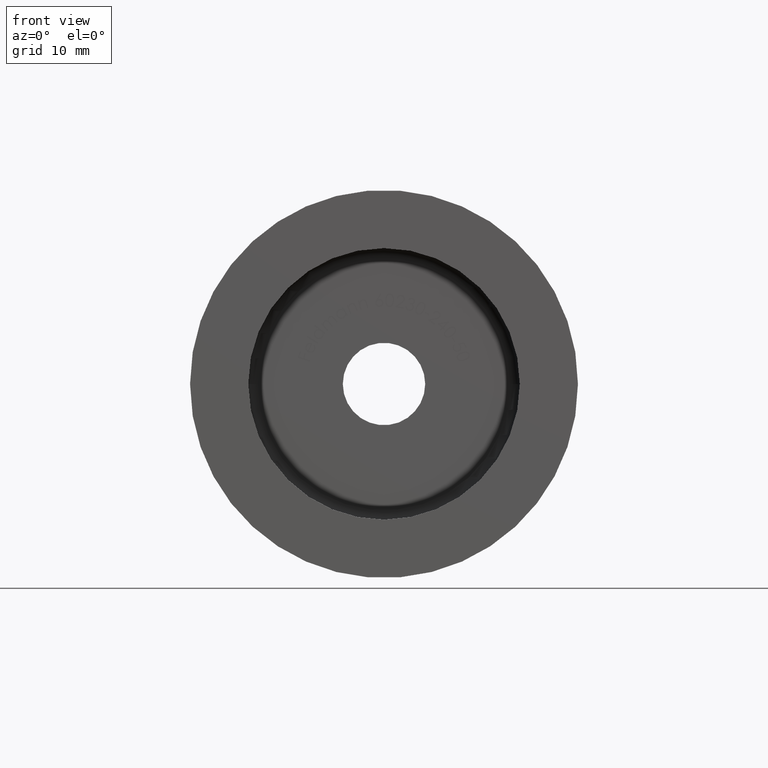
[diagram: clean part render]
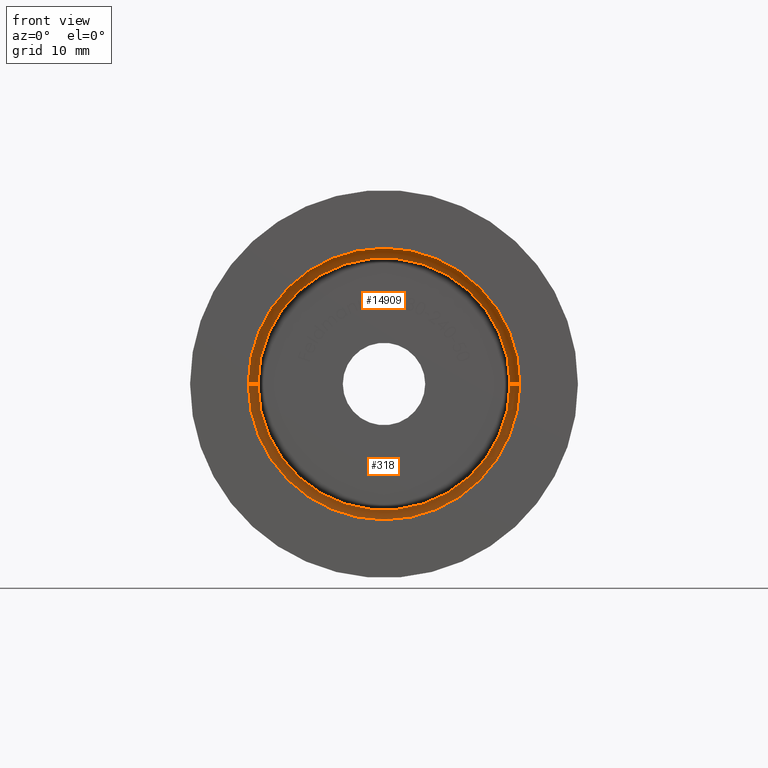
[diagram: same view with one multi-face feature highlighted, each face labeled with its STEP entity id]
A machine part, front view. The highlighted faces form ONE feature: a constant-radius fillet chain: 2 tangent blend faces with common blend radius 1 mm. The faces share edges in the B-rep.
Their STEP definitions:
[1] entity #14909 (Torus):
#130 = DIRECTION ( 'NONE',  ( -1.224646799147353207E-16, -8.497694209043069439E-33, 1.000000000000000000 ) ) ;
#227 = CARTESIAN_POINT ( 'NONE',  ( 13.00000000000000178, 44.00000000000000711, 1.592040838891559293E-15 ) ) ;
#495 = DIRECTION ( 'NONE',  ( -6.938893903907228378E-17, 1.000000000000000000, -0.000000000000000000 ) ) ;
#1329 = CARTESIAN_POINT ( 'NONE',  ( 14.00000000000000178, 44.00000000000000711, 1.714505518806294638E-15 ) ) ;
#1524 = CIRCLE ( 'NONE', #13861, 13.00000000000000178 ) ;
#1796 = CIRCLE ( 'NONE', #10970, 1.000000000000000888 ) ;
#1859 = CARTESIAN_POINT ( 'NONE',  ( -14.00000000000000178, 44.00000000000000711, 0.000000000000000000 ) ) ;
#2018 = DIRECTION ( 'NONE',  ( -1.000000000000000000, -6.938893903907228378E-17, 0.000000000000000000 ) ) ;
#2139 = VERTEX_POINT ( 'NONE', #11878 ) ;
#2423 = FACE_OUTER_BOUND ( 'NONE', #15037, .T. ) ;
#2976 = CARTESIAN_POINT ( 'NONE',  ( 0.000000000000000000, 44.00000000000000711, 0.000000000000000000 ) ) ;
#3293 = DIRECTION ( 'NONE',  ( -6.938893903907228378E-17, 1.000000000000000000, -0.000000000000000000 ) ) ;
#4107 = VERTEX_POINT ( 'NONE', #9089 ) ;
#4769 = CARTESIAN_POINT ( 'NONE',  ( 0.000000000000000000, 44.00000000000000711, 0.000000000000000000 ) ) ;
#5057 = TOROIDAL_SURFACE ( 'NONE', #11424, 13.00000000000000178, 1.000000000000000000 ) ;
#5368 = ORIENTED_EDGE ( 'NONE', *, *, #13559, .F. ) ;
#5591 = CARTESIAN_POINT ( 'NONE',  ( -13.00000000000000178, 44.00000000000000711, 0.000000000000000000 ) ) ;
#5629 = CARTESIAN_POINT ( 'NONE',  ( 0.000000000000000000, 44.00000000000000711, 0.000000000000000000 ) ) ;
#5700 = AXIS2_PLACEMENT_3D ( 'NONE', #2976, #495, #15283 ) ;
#5711 = VERTEX_POINT ( 'NONE', #9683 ) ;
#6003 = CARTESIAN_POINT ( 'NONE',  ( -6.938893903907244401E-17, 45.00000000000000711, 0.000000000000000000 ) ) ;
#6058 = ORIENTED_EDGE ( 'NONE', *, *, #12772, .F. ) ;
#7043 = AXIS2_PLACEMENT_3D ( 'NONE', #4769, #13370, #13419 ) ;
#7247 = ORIENTED_EDGE ( 'NONE', *, *, #15884, .F. ) ;
#7282 = ORIENTED_EDGE ( 'NONE', *, *, #15491, .F. ) ;
#7961 = DIRECTION ( 'NONE',  ( -1.000000000000000000, 0.000000000000000000, 0.000000000000000000 ) ) ;
#8099 = AXIS2_PLACEMENT_3D ( 'NONE', #227, #130, #11141 ) ;
#8586 = DIRECTION ( 'NONE',  ( -1.000000000000000000, 0.000000000000000000, 0.000000000000000000 ) ) ;
#9089 = CARTESIAN_POINT ( 'NONE',  ( 13.00000000000000178, 45.00000000000000711, 1.653273178848927064E-15 ) ) ;
#9112 = VERTEX_POINT ( 'NONE', #1859 ) ;
#9683 = CARTESIAN_POINT ( 'NONE',  ( -13.00000000000000178, 45.00000000000000711, 0.000000000000000000 ) ) ;
#10166 = EDGE_CURVE ( 'NONE', #9112, #5711, #1796, .T. ) ;
#10970 = AXIS2_PLACEMENT_3D ( 'NONE', #5591, #11689, #7961 ) ;
#11002 = CIRCLE ( 'NONE', #5700, 14.00000000000000000 ) ;
#11075 = DIRECTION ( 'NONE',  ( 6.938893903907228378E-17, -1.000000000000000000, 0.000000000000000000 ) ) ;
#11141 = DIRECTION ( 'NONE',  ( 1.000000000000000000, 0.000000000000000000, 1.224646799147351482E-16 ) ) ;
#11424 = AXIS2_PLACEMENT_3D ( 'NONE', #5629, #3293, #2018 ) ;
#11484 = ORIENTED_EDGE ( 'NONE', *, *, #10166, .T. ) ;
#11563 = CIRCLE ( 'NONE', #7043, 14.00000000000000000 ) ;
#11689 = DIRECTION ( 'NONE',  ( 0.000000000000000000, -0.000000000000000000, -1.000000000000000000 ) ) ;
#11878 = CARTESIAN_POINT ( 'NONE',  ( 1.714505518806294638E-15, 44.00000000000000711, 14.00000000000000000 ) ) ;
#11979 = VERTEX_POINT ( 'NONE', #1329 ) ;
#12772 = EDGE_CURVE ( 'NONE', #2139, #11979, #11563, .T. ) ;
#13370 = DIRECTION ( 'NONE',  ( -6.938893903907228378E-17, 1.000000000000000000, -0.000000000000000000 ) ) ;
#13419 = DIRECTION ( 'NONE',  ( -1.000000000000000000, 0.000000000000000000, 0.000000000000000000 ) ) ;
#13559 = EDGE_CURVE ( 'NONE', #9112, #2139, #11002, .T. ) ;
#13861 = AXIS2_PLACEMENT_3D ( 'NONE', #6003, #11075, #8586 ) ;
#14363 = CIRCLE ( 'NONE', #8099, 1.000000000000000888 ) ;
#14909 = ADVANCED_FACE ( 'NONE', ( #2423 ), #5057, .F. ) ;
#15037 = EDGE_LOOP ( 'NONE', ( #7282, #6058, #5368, #11484, #7247 ) ) ;
#15283 = DIRECTION ( 'NONE',  ( -1.000000000000000000, 0.000000000000000000, 0.000000000000000000 ) ) ;
#15491 = EDGE_CURVE ( 'NONE', #11979, #4107, #14363, .T. ) ;
#15884 = EDGE_CURVE ( 'NONE', #4107, #5711, #1524, .T. ) ;
[2] entity #318 (Torus):
#130 = DIRECTION ( 'NONE',  ( -1.224646799147353207E-16, -8.497694209043069439E-33, 1.000000000000000000 ) ) ;
#227 = CARTESIAN_POINT ( 'NONE',  ( 13.00000000000000178, 44.00000000000000711, 1.592040838891559293E-15 ) ) ;
#318 = ADVANCED_FACE ( 'NONE', ( #12040 ), #5459, .F. ) ;
#899 = DIRECTION ( 'NONE',  ( -6.938893903907228378E-17, 1.000000000000000000, -0.000000000000000000 ) ) ;
#1305 = DIRECTION ( 'NONE',  ( -6.938893903907228378E-17, 1.000000000000000000, -0.000000000000000000 ) ) ;
#1329 = CARTESIAN_POINT ( 'NONE',  ( 14.00000000000000178, 44.00000000000000711, 1.714505518806294638E-15 ) ) ;
#1796 = CIRCLE ( 'NONE', #10970, 1.000000000000000888 ) ;
#1859 = CARTESIAN_POINT ( 'NONE',  ( -14.00000000000000178, 44.00000000000000711, 0.000000000000000000 ) ) ;
#2330 = DIRECTION ( 'NONE',  ( -1.000000000000000000, 0.000000000000000000, 0.000000000000000000 ) ) ;
#2706 = CARTESIAN_POINT ( 'NONE',  ( 0.000000000000000000, 44.00000000000000711, 0.000000000000000000 ) ) ;
#2950 = ORIENTED_EDGE ( 'NONE', *, *, #10166, .F. ) ;
#3258 = AXIS2_PLACEMENT_3D ( 'NONE', #6995, #899, #12973 ) ;
#4107 = VERTEX_POINT ( 'NONE', #9089 ) ;
#4202 = AXIS2_PLACEMENT_3D ( 'NONE', #2706, #1305, #12421 ) ;
#5097 = EDGE_LOOP ( 'NONE', ( #12400, #11494, #11874, #2950, #13227 ) ) ;
#5177 = AXIS2_PLACEMENT_3D ( 'NONE', #15483, #15651, #8306 ) ;
#5459 = TOROIDAL_SURFACE ( 'NONE', #4202, 13.00000000000000178, 1.000000000000000000 ) ;
#5591 = CARTESIAN_POINT ( 'NONE',  ( -13.00000000000000178, 44.00000000000000711, 0.000000000000000000 ) ) ;
#5711 = VERTEX_POINT ( 'NONE', #9683 ) ;
#5719 = CIRCLE ( 'NONE', #12543, 14.00000000000000000 ) ;
#6995 = CARTESIAN_POINT ( 'NONE',  ( 0.000000000000000000, 44.00000000000000711, 0.000000000000000000 ) ) ;
#7574 = CARTESIAN_POINT ( 'NONE',  ( 0.000000000000000000, 44.00000000000000711, -14.00000000000000000 ) ) ;
#7961 = DIRECTION ( 'NONE',  ( -1.000000000000000000, 0.000000000000000000, 0.000000000000000000 ) ) ;
#8099 = AXIS2_PLACEMENT_3D ( 'NONE', #227, #130, #11141 ) ;
#8306 = DIRECTION ( 'NONE',  ( -1.000000000000000000, 0.000000000000000000, 0.000000000000000000 ) ) ;
#8314 = CIRCLE ( 'NONE', #5177, 13.00000000000000178 ) ;
#8434 = DIRECTION ( 'NONE',  ( -6.938893903907228378E-17, 1.000000000000000000, -0.000000000000000000 ) ) ;
#9089 = CARTESIAN_POINT ( 'NONE',  ( 13.00000000000000178, 45.00000000000000711, 1.653273178848927064E-15 ) ) ;
#9112 = VERTEX_POINT ( 'NONE', #1859 ) ;
#9644 = CIRCLE ( 'NONE', #3258, 14.00000000000000000 ) ;
#9683 = CARTESIAN_POINT ( 'NONE',  ( -13.00000000000000178, 45.00000000000000711, 0.000000000000000000 ) ) ;
#9859 = EDGE_CURVE ( 'NONE', #5711, #4107, #8314, .T. ) ;
#10166 = EDGE_CURVE ( 'NONE', #9112, #5711, #1796, .T. ) ;
#10970 = AXIS2_PLACEMENT_3D ( 'NONE', #5591, #11689, #7961 ) ;
#11141 = DIRECTION ( 'NONE',  ( 1.000000000000000000, 0.000000000000000000, 1.224646799147351482E-16 ) ) ;
#11494 = ORIENTED_EDGE ( 'NONE', *, *, #15491, .T. ) ;
#11689 = DIRECTION ( 'NONE',  ( 0.000000000000000000, -0.000000000000000000, -1.000000000000000000 ) ) ;
#11874 = ORIENTED_EDGE ( 'NONE', *, *, #9859, .F. ) ;
#11979 = VERTEX_POINT ( 'NONE', #1329 ) ;
#12040 = FACE_OUTER_BOUND ( 'NONE', #5097, .T. ) ;
#12400 = ORIENTED_EDGE ( 'NONE', *, *, #15712, .F. ) ;
#12421 = DIRECTION ( 'NONE',  ( -1.000000000000000000, -6.938893903907228378E-17, 0.000000000000000000 ) ) ;
#12543 = AXIS2_PLACEMENT_3D ( 'NONE', #15711, #8434, #2330 ) ;
#12973 = DIRECTION ( 'NONE',  ( -1.000000000000000000, 0.000000000000000000, 0.000000000000000000 ) ) ;
#13176 = EDGE_CURVE ( 'NONE', #15560, #9112, #9644, .T. ) ;
#13227 = ORIENTED_EDGE ( 'NONE', *, *, #13176, .F. ) ;
#14363 = CIRCLE ( 'NONE', #8099, 1.000000000000000888 ) ;
#15483 = CARTESIAN_POINT ( 'NONE',  ( -6.938893903907244401E-17, 45.00000000000000711, 0.000000000000000000 ) ) ;
#15491 = EDGE_CURVE ( 'NONE', #11979, #4107, #14363, .T. ) ;
#15560 = VERTEX_POINT ( 'NONE', #7574 ) ;
#15651 = DIRECTION ( 'NONE',  ( 6.938893903907228378E-17, -1.000000000000000000, 0.000000000000000000 ) ) ;
#15711 = CARTESIAN_POINT ( 'NONE',  ( 0.000000000000000000, 44.00000000000000711, 0.000000000000000000 ) ) ;
#15712 = EDGE_CURVE ( 'NONE', #11979, #15560, #5719, .T. ) ;